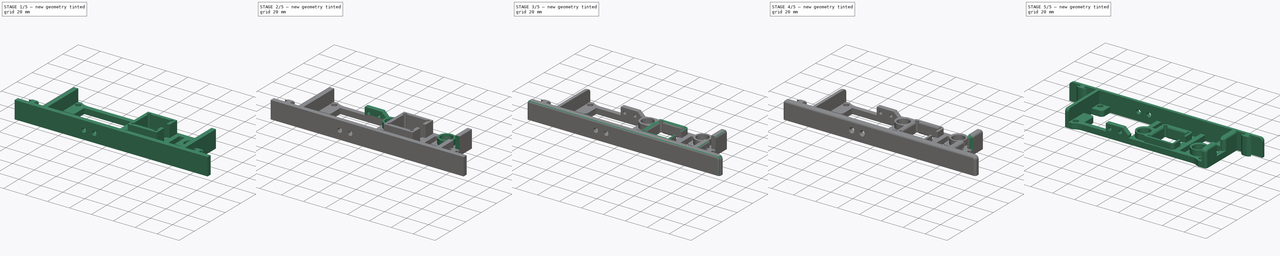
[diagram: build sequence overview — one tinted view per stage of 5, left to right]
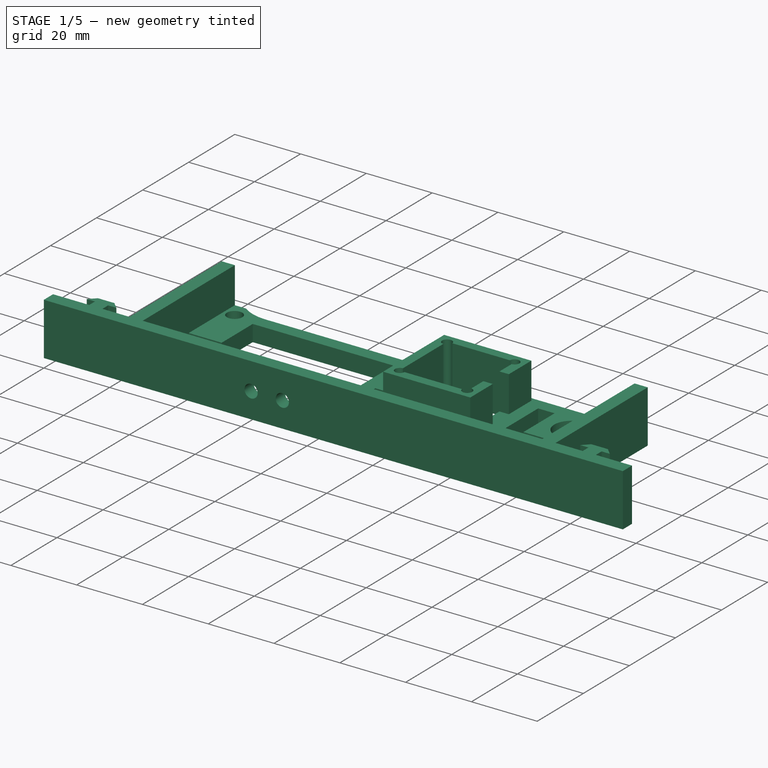
[diagram: stage 1 of 5 — iso view after this stage's code; geometry added in this stage tinted green]
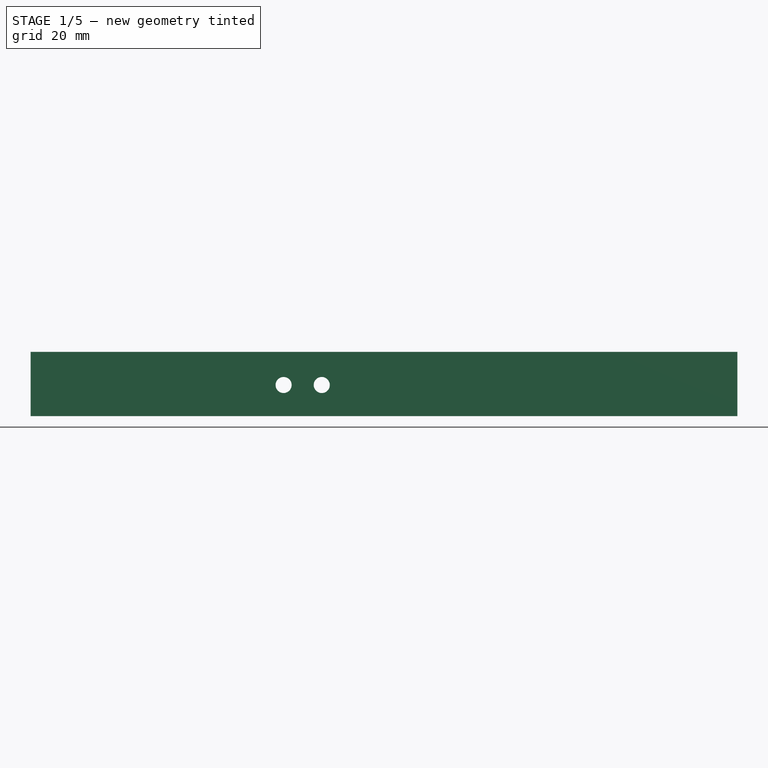
[diagram: stage 1 of 5 — front view after this stage's code; geometry added in this stage tinted green]
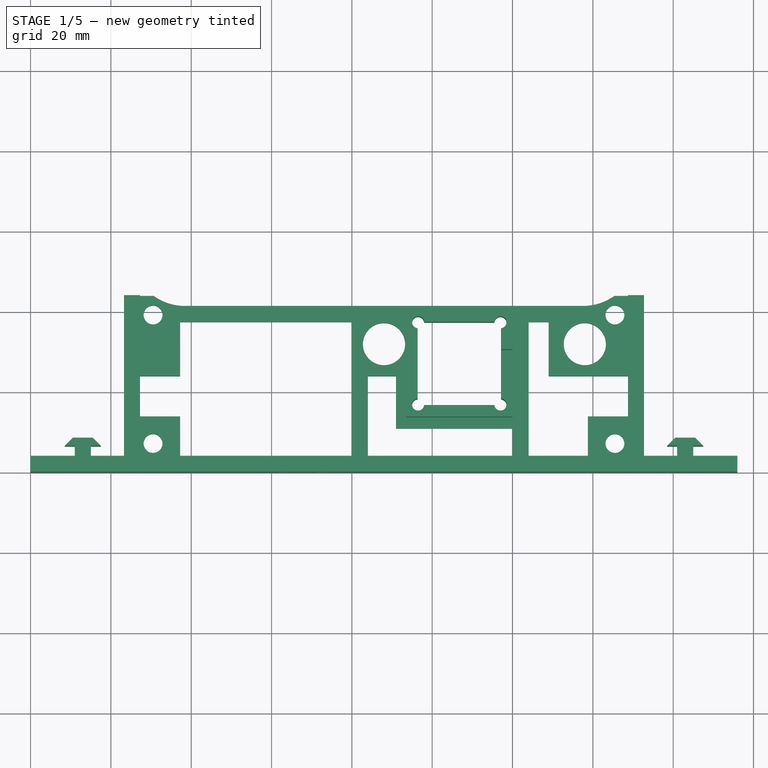
[diagram: stage 1 of 5 — top view after this stage's code; geometry added in this stage tinted green]
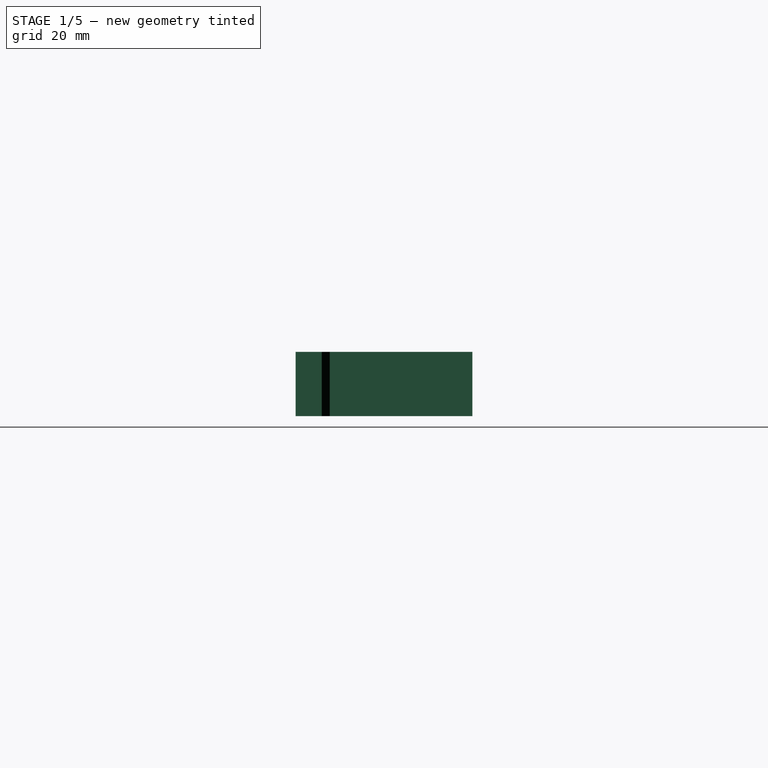
[diagram: stage 1 of 5 — right view after this stage's code; geometry added in this stage tinted green]
FCSTD DOCUMENT  (FreeCAD 0.18R4 (GitTag))
Label: Z_upper_rightv3.7
License: CreativeCommons Attribution-ShareAlike
LicenseURL: http://creativecommons.org/licenses/by-sa/4.0/
objects: Sketcher::SketchObject×11, PartDesign::Pocket×8, PartDesign::Pad×4, PartDesign::Chamfer×3, PartDesign::Fillet×2, PartDesign::Body×1, Part::Mirroring×1
note: 42 computed .brp shape members not serialized (recipe doc carries the construction recipe); baked Part::Feature solids carry a one-line shape summary decoded from their .brp

FEATURE [Sketcher::SketchObject] Sketch
  MapMode = 5
  Support = -> [XY_Plane]
  sketch-geometry (70):
    g0: LineSegment StartX=0 StartY=0 StartZ=0 EndX=0 EndY=4 EndZ=0
    g1: LineSegment StartX=0 StartY=4 StartZ=0 EndX=11 EndY=4 EndZ=0
    g2: LineSegment StartX=15 StartY=4 StartZ=0 EndX=23.25 EndY=4 EndZ=0
    g3: LineSegment StartX=23.25 StartY=4 StartZ=0 EndX=23.25 EndY=44 EndZ=0
    g4: LineSegment StartX=152.75 StartY=44 StartZ=0 EndX=152.75 EndY=4 EndZ=0
    g5: LineSegment StartX=152.75 StartY=4 StartZ=0 EndX=161 EndY=4 EndZ=0
    g6: LineSegment StartX=165 StartY=4 StartZ=0 EndX=176 EndY=4 EndZ=0
    g7: LineSegment StartX=176 StartY=4 StartZ=0 EndX=176 EndY=0 EndZ=0
    g8: LineSegment StartX=176 StartY=0 StartZ=0 EndX=0 EndY=0 EndZ=0
    g9: LineSegment StartX=23.25 StartY=44 StartZ=0 EndX=30.65 EndY=44 EndZ=0
    g10: LineSegment StartX=38.396 StartY=41.5 StartZ=0 EndX=137.604 EndY=41.5 EndZ=0
    g11: LineSegment StartX=145.35 StartY=44 StartZ=0 EndX=152.75 EndY=44 EndZ=0
    g12: ArcOfCircle CenterX=137.604 CenterY=54.75 CenterZ=0 NormalX=0 NormalY=0 NormalZ=1 AngleXU=0 Radius=13.25 StartAngle=4.71239 EndAngle=5.33678
    g13: ArcOfCircle CenterX=38.396 CenterY=54.75 CenterZ=0 NormalX=0 NormalY=0 NormalZ=1 AngleXU=0 Radius=13.25 StartAngle=4.088 EndAngle=4.71239
    g14: Circle CenterX=30.5 CenterY=39.25 CenterZ=0 NormalX=0 NormalY=0 NormalZ=1 AngleXU=0 Radius=2.35
    g15: Circle CenterX=30.5 CenterY=7.25 CenterZ=0 NormalX=0 NormalY=0 NormalZ=1 AngleXU=0 Radius=2.35
    g16: Circle CenterX=145.5 CenterY=39.25 CenterZ=0 NormalX=0 NormalY=0 NormalZ=1 AngleXU=0 Radius=2.35
    g17: Circle CenterX=145.5 CenterY=7.25 CenterZ=0 NormalX=0 NormalY=0 NormalZ=1 AngleXU=0 Radius=2.35
    g18: Circle CenterX=138 CenterY=32 CenterZ=0 NormalX=0 NormalY=0 NormalZ=1 AngleXU=0 Radius=5.25
    g19: Circle CenterX=88 CenterY=32 CenterZ=0 NormalX=0 NormalY=0 NormalZ=1 AngleXU=0 Radius=5.25
    g20: LineSegment [constr] StartX=30.5 StartY=39.25 StartZ=0 EndX=145.5 EndY=39.25 EndZ=0
    g21: LineSegment [constr] StartX=145.5 StartY=39.25 StartZ=0 EndX=145.5 EndY=7.25 EndZ=0
    g22: LineSegment [constr] StartX=145.5 StartY=7.25 StartZ=0 EndX=30.5 EndY=7.25 EndZ=0
    g23: LineSegment [constr] StartX=30.5 StartY=7.25 StartZ=0 EndX=30.5 EndY=39.25 EndZ=0
    g24: LineSegment [constr] StartX=88 StartY=32 StartZ=0 EndX=138 EndY=32 EndZ=0
    g25: LineSegment StartX=27.25 StartY=24 StartZ=0 EndX=37.25 EndY=24 EndZ=0
    g26: LineSegment StartX=37.25 StartY=24 StartZ=0 EndX=37.25 EndY=37.5 EndZ=0
    g27: LineSegment StartX=37.25 StartY=37.5 StartZ=0 EndX=80 EndY=37.5 EndZ=0
    g28: LineSegment StartX=80 StartY=37.5 StartZ=0 EndX=80 EndY=4 EndZ=0
    g29: LineSegment StartX=80 StartY=4 StartZ=0 EndX=37.25 EndY=4 EndZ=0
    g30: LineSegment StartX=37.25 StartY=4 StartZ=0 EndX=37.25 EndY=14 EndZ=0
    g31: LineSegment StartX=37.25 StartY=14 StartZ=0 EndX=27.25 EndY=14 EndZ=0
    g32: LineSegment StartX=27.25 StartY=14 StartZ=0 EndX=27.25 EndY=24 EndZ=0
    g33: LineSegment [constr] StartX=96.5 StartY=37.25 StartZ=0 EndX=117 EndY=37.25 EndZ=0
    g34: LineSegment [constr] StartX=117 StartY=37.25 StartZ=0 EndX=117 EndY=16.75 EndZ=0
    g35: LineSegment [constr] StartX=117 StartY=16.75 StartZ=0 EndX=96.5 EndY=16.75 EndZ=0
    g36: LineSegment [constr] StartX=96.5 StartY=16.75 StartZ=0 EndX=96.5 EndY=37.25 EndZ=0
    g37: LineSegment StartX=84 StartY=4 StartZ=0 EndX=84 EndY=24 EndZ=0
    g38: LineSegment StartX=84 StartY=24 StartZ=0 EndX=91 EndY=24 EndZ=0
    g39: LineSegment StartX=91 StartY=24 StartZ=0 EndX=91 EndY=11 EndZ=0
    g40: LineSegment StartX=91 StartY=11 StartZ=0 EndX=120 EndY=11 EndZ=0
    g41: LineSegment StartX=120 StartY=11 StartZ=0 EndX=120 EndY=4 EndZ=0
    g42: LineSegment StartX=120 StartY=4 StartZ=0 EndX=84 EndY=4 EndZ=0
    g43: LineSegment StartX=124 StartY=37.5 StartZ=0 EndX=129 EndY=37.5 EndZ=0
    g44: LineSegment StartX=129 StartY=37.5 StartZ=0 EndX=129 EndY=24 EndZ=0
    g45: LineSegment StartX=129 StartY=24 StartZ=0 EndX=148.75 EndY=24 EndZ=0
    g46: LineSegment StartX=148.75 StartY=24 StartZ=0 EndX=148.75 EndY=14 EndZ=0
    g47: LineSegment StartX=148.75 StartY=14 StartZ=0 EndX=138.75 EndY=14 EndZ=0
    g48: LineSegment StartX=138.75 StartY=14 StartZ=0 EndX=138.75 EndY=4 EndZ=0
    g49: LineSegment StartX=138.75 StartY=4 StartZ=0 EndX=124 EndY=4 EndZ=0
    g50: LineSegment StartX=124 StartY=4 StartZ=0 EndX=124 EndY=37.5 EndZ=0
    g51: LineSegment StartX=11 StartY=4 StartZ=0 EndX=11 EndY=6.5 EndZ=0
    g52: LineSegment StartX=11 StartY=6.5 StartZ=0 EndX=8.5 EndY=6.5 EndZ=0
    g53: LineSegment StartX=8.5 StartY=6.5 StartZ=0 EndX=10.5 EndY=8.5 EndZ=0
    g54: LineSegment StartX=10.5 StartY=8.5 StartZ=0 EndX=15.5 EndY=8.5 EndZ=0
    g55: LineSegment StartX=15.5 StartY=8.5 StartZ=0 EndX=17.5 EndY=6.5 EndZ=0
    g56: LineSegment StartX=17.5 StartY=6.5 StartZ=0 EndX=15 EndY=6.5 EndZ=0
    g57: LineSegment StartX=15 StartY=6.5 StartZ=0 EndX=15 EndY=4 EndZ=0
    g58: LineSegment StartX=161 StartY=4 StartZ=0 EndX=161 EndY=6.5 EndZ=0
    g59: LineSegment StartX=161 StartY=6.5 StartZ=0 EndX=158.5 EndY=6.5 EndZ=0
    g60: LineSegment StartX=158.5 StartY=6.5 StartZ=0 EndX=160.5 EndY=8.5 EndZ=0
    g61: LineSegment StartX=160.5 StartY=8.5 StartZ=0 EndX=165.5 EndY=8.5 EndZ=0
    g62: LineSegment StartX=165.5 StartY=8.5 StartZ=0 EndX=167.5 EndY=6.5 EndZ=0
    g63: LineSegment StartX=167.5 StartY=6.5 StartZ=0 EndX=165 EndY=6.5 EndZ=0
    g64: LineSegment StartX=165 StartY=6.5 StartZ=0 EndX=165 EndY=4 EndZ=0
    g65: LineSegment StartX=96.3881 StartY=37.375 StartZ=0 EndX=96.3881 EndY=16.625 EndZ=0
    g66: LineSegment StartX=96.3881 StartY=16.625 StartZ=0 EndX=117.138 EndY=16.625 EndZ=0
    g67: LineSegment StartX=117.138 StartY=16.625 StartZ=0 EndX=117.138 EndY=37.375 EndZ=0
    g68: LineSegment StartX=117.138 StartY=37.375 StartZ=0 EndX=96.3881 EndY=37.375 EndZ=0
    g69: Circle [constr] CenterX=106.763 CenterY=27 CenterZ=0 NormalX=0 NormalY=0 NormalZ=1 AngleXU=0 Radius=14.6725
  constraints (204):
    c: Coincident(g0,g1)
    c: Coincident(g2,g3)
    c: Coincident(g4,g5)
    c: Coincident(g6,g7)
    c: Coincident(g7,g8)
    c: Coincident(g0,g8)
    c: Coincident(g0,g-1)
    c: Horizontal(g8)
    c: Horizontal(g1)
    c: Horizontal(g2)
    c: Horizontal(g5)
    c: Horizontal(g6)
    c: Vertical(g7)
    c: Vertical(g4)
    c: Vertical(g3)
    c: Vertical(g0)
    c: DistanceY(g0,g0) = 4
    c: DistanceX(g2) = 23.25
    c: PointOnObject(g2,g1)
    c: Coincident(g4,g11)
    c: Horizontal(g11)
    c: Horizontal(g9)
    c: Horizontal(g10)
    c: DistanceY(g3,g3) = 40
    c: Coincident(g9,g13)
    c: DistanceX(g9,g9) = 7.4
    c: Coincident(g3,g9)
    c: Tangent(g10,g13) = -1.5708
    c: DistanceY(g10,g9) = 2.5
    c: Radius(g13) = 13.25
    c: Coincident(g11,g12)
    c: DistanceX(g8,g8) = 176
    c: Equal(g7,g0)
    c: Equal(g4,g3)
    c: DistanceX(g11,g11) = 7.4
    c: Tangent(g10,g12) = -1.5708
    c: Equal(g12,g13)
    c: Coincident(g20,g21)
    c: Coincident(g21,g22)
    c: Coincident(g22,g23)
    c: Coincident(g23,g20)
    c: Horizontal(g20)
    c: Horizontal(g22)
    c: Vertical(g21)
    c: Vertical(g23)
    c: Coincident(g17,g21)
    c: Coincident(g15,g22)
    c: Coincident(g14,g20)
    c: Coincident(g16,g20)
    c: DistanceX(g15) = 30.5
    c: DistanceY(g15) = 7.25
    c: DistanceY(g23,g23) = 32
    c: DistanceX(g22,g22) = 115
    c: Radius(g17) = 2.35
    c: Equal(g17,g16)
    c: Equal(g17,g15)
    c: Equal(g17,g14)
    c: Coincident(g18,g24)
    c: Coincident(g19,g24)
    c: Horizontal(g24)
    c: DistanceX(g19) = 88
    c: DistanceY(g19) = 32
    c: DistanceX(g24,g24) = 50
    c: Radius(g19) = 5.25
    c: Equal(g19,g18)
    c: Coincident(g25,g26)
    c: Coincident(g26,g27)
    c: Coincident(g27,g28)
    c: Coincident(g28,g29)
    c: Coincident(g29,g30)
    c: Coincident(g30,g31)
    c: Coincident(g31,g32)
    c: Coincident(g25,g32)
    c: Horizontal(g29)
    c: Horizontal(g31)
    c: Horizontal(g25)
    c: Horizontal(g27)
    c: Vertical(g32)
    c: Vertical(g30)
    c: Vertical(g26)
    c: Vertical(g28)
    c: DistanceX(g29) = 37.25
    c: DistanceY(g29) = 4
    c: DistanceX(g31,g31) = 10
    c: DistanceY(g30,g30) = 10
    c: DistanceY(g32,g32) = 10
    c: DistanceX(g25,g25) = 10
    c: DistanceY(g26,g26) = 13.5
    c: DistanceX(g27,g27) = 42.75
    c: Coincident(g33,g34)
    c: Coincident(g34,g35)
    c: Coincident(g35,g36)
    c: Coincident(g36,g33)
    c: Horizontal(g33)
    c: Horizontal(g35)
    c: Vertical(g34)
    c: Vertical(g36)
    c: DistanceX(g35) = 96.5
    c: DistanceY(g35) = 16.75
    c: Equal(g36,g35)
    c: DistanceX(g35,g35) = 20.5
    c: Coincident(g37,g38)
    c: Coincident(g38,g39)
    c: Coincident(g39,g40)
    c: Coincident(g40,g41)
    c: Coincident(g41,g42)
    c: Coincident(g42,g37)
    c: Horizontal(g42)
    c: PointOnObject(g37,g29)
    c: Vertical(g37)
    c: Vertical(g39)
    c: Vertical(g41)
    c: Horizontal(g38)
    c: Horizontal(g40)
    c: DistanceX(g28,g37) = 4
    c: DistanceY(g37,g37) = 20
    c: DistanceX(g38,g38) = 7
    c: DistanceY(g39,g39) = 13
    c: DistanceX(g42,g42) = 36
    c: Coincident(g43,g44)
    c: Coincident(g44,g45)
    c: Coincident(g45,g46)
    c: Coincident(g46,g47)
    c: Coincident(g47,g48)
    c: Coincident(g48,g49)
    c: Coincident(g49,g50)
    c: Coincident(g43,g50)
    c: Vertical(g50)
    c: Vertical(g44)
    c: Vertical(g46)
    c: Vertical(g48)
    c: Horizontal(g49)
    c: Horizontal(g47)
    c: Horizontal(g45)
    c: Horizontal(g43)
    c: PointOnObject(g49,g42)
    c: DistanceX(g41,g49) = 4
    c: DistanceY(g50,g50) = 33.5
    c: DistanceX(g43,g43) = 5
    c: DistanceY(g44,g44) = 13.5
    c: DistanceX(g45,g45) = 19.75
    c: DistanceY(g46,g46) = 10
    c: DistanceX(g47,g47) = 10
    c: Coincident(g51,g52)
    c: Coincident(g52,g53)
    c: Coincident(g53,g54)
    c: Coincident(g54,g55)
    c: Coincident(g55,g56)
    c: Coincident(g56,g57)
    c: Coincident(g2,g57)
    c: Coincident(g58,g59)
    c: Coincident(g59,g60)
    c: Coincident(g60,g61)
    c: Coincident(g61,g62)
    c: Coincident(g62,g63)
    c: Coincident(g63,g64)
    c: Coincident(g6,g64)
    c: Vertical(g64)
    c: Vertical(g58)
    c: Horizontal(g61)
    c: Horizontal(g59)
    c: Horizontal(g63)
    c: Vertical(g51)
    c: Vertical(g57)
    c: Horizontal(g54)
    c: Horizontal(g52)
    c: Horizontal(g56)
    c: Angle(g53) = 0.785398
    c: Angle(g55) = -0.785398
    c: DistanceY(g51,g51) = 2.5
    c: Coincident(g1,g51)
    c: Equal(g57,g51)
    c: DistanceY(g1,g53) = 4.5
    c: DistanceX(g1,g2) = 4
    c: DistanceY(g64,g64) = 2.5
    c: Equal(g58,g64)
    c: DistanceY(g6,g61) = 4.5
    c: Parallel(g60,g53)
    c: Parallel(g55,g62)
    c: Coincident(g5,g58)
    c: DistanceX(g59,g62) = 9
    c: Equal(g59,g63)
    c: PointOnObject(g5,g6)
    c: DistanceX(g4,g6) = 23.25
    c: DistanceX(g52,g55) = 9
    c: Equal(g52,g56)
    c: DistanceX(g5,g6) = 4
    c: DistanceX(g6,g6) = 11
    c: DistanceX(g1,g1) = 11
    c: Coincident(g65,g66)
    c: Coincident(g66,g67)
    c: Coincident(g67,g68)
    c: Coincident(g68,g65)
    c: Equal(g65,g66)
    c: Equal(g65,g67)
    c: Equal(g65,g68)
    c: PointOnObject(g65,g69)
    c: PointOnObject(g66,g69)
    c: PointOnObject(g67,g69)
    c: PointOnObject(g68,g69)
    c: Horizontal(g68)
    c: DistanceX(g69) = 106.763
    c: DistanceY(g69) = 27
    c: DistanceX(g68,g68) = 20.75
FEATURE [PartDesign::Pad] Pad
  Length = 16
  Length2 = 100
  Profile = -> Sketch
  Type = 0
FEATURE [Sketcher::SketchObject] Sketch001
  MapMode = 5
  Placement = pos=(0,0,16) rot=(0,0,1;0rad)
  Support = -> [Pad]
  sketch-geometry (12):
    g0: LineSegment StartX=93.5 StartY=40.25 StartZ=0 EndX=120 EndY=40.25 EndZ=0
    g1: LineSegment StartX=120 StartY=40.25 StartZ=0 EndX=120 EndY=30.5 EndZ=0
    g2: LineSegment StartX=120 StartY=13.75 StartZ=0 EndX=93.5 EndY=13.75 EndZ=0
    g3: LineSegment StartX=93.5 StartY=13.75 StartZ=0 EndX=93.5 EndY=40.25 EndZ=0
    g4: LineSegment StartX=27.25 StartY=4 StartZ=0 EndX=148.75 EndY=4 EndZ=0
    g5: LineSegment StartX=148.75 StartY=4 StartZ=0 EndX=148.75 EndY=44.25 EndZ=0
    g6: LineSegment StartX=148.75 StartY=44.25 StartZ=0 EndX=27.25 EndY=44.25 EndZ=0
    g7: LineSegment StartX=27.25 StartY=44.25 StartZ=0 EndX=27.25 EndY=4 EndZ=0
    g8: LineSegment StartX=120 StartY=30.5 StartZ=0 EndX=117 EndY=30.5 EndZ=0
    g9: LineSegment StartX=117 StartY=30.5 StartZ=0 EndX=117 EndY=23.5 EndZ=0
    g10: LineSegment StartX=117 StartY=23.5 StartZ=0 EndX=120 EndY=23.5 EndZ=0
    g11: LineSegment StartX=120 StartY=23.5 StartZ=0 EndX=120 EndY=13.75 EndZ=0
  constraints (35):
    c: Coincident(g0,g1)
    c: Coincident(g11,g2)
    c: Coincident(g2,g3)
    c: Coincident(g3,g0)
    c: Horizontal(g0)
    c: Horizontal(g2)
    c: Vertical(g1)
    c: Vertical(g3)
    c: DistanceX(g2) = 93.5
    c: DistanceY(g2) = 13.75
    c: Equal(g3,g0)
    c: DistanceX(g0,g0) = 26.5
    c: Coincident(g4,g5)
    c: Coincident(g5,g6)
    c: Coincident(g6,g7)
    c: Coincident(g7,g4)
    c: Horizontal(g4)
    c: Horizontal(g6)
    c: Vertical(g5)
    c: Vertical(g7)
    c: DistanceX(g4) = 27.25
    c: DistanceY(g4) = 4
    c: DistanceX(g4,g4) = 121.5
    c: DistanceY(g5,g5) = 40.25
    c: Coincident(g8,g9)
    c: Coincident(g9,g10)
    c: Horizontal(g8)
    c: Horizontal(g10)
    c: Vertical(g9)
    c: DistanceY(g9,g9) = 7
    c: Coincident(g1,g8)
    c: Coincident(g11,g10)
    c: Tangent(g1,g11)
    c: Equal(g1,g11)
    c: DistanceX(g10,g10) = 3
FEATURE [Sketcher::SketchObject] Sketch004
  MapMode = 5
  Placement = pos=(0,41.5,0) rot=(0,0.707107,0.707107;3.14159rad)
  sketch-geometry (7):
    g0: LineSegment StartX=-80 StartY=5 StartZ=0 EndX=-80 EndY=7 EndZ=0
    g1: LineSegment StartX=-80 StartY=7 StartZ=0 EndX=-75 EndY=12 EndZ=0
    g2: LineSegment StartX=-75 StartY=12 StartZ=0 EndX=-59.5 EndY=12 EndZ=0
    g3: LineSegment StartX=-59.5 StartY=12 StartZ=0 EndX=-59.5 EndY=5 EndZ=0
    g4: LineSegment StartX=-59.5 StartY=5 StartZ=0 EndX=-80 EndY=5 EndZ=0
    g5: Circle CenterX=-72.5 CenterY=7.75 CenterZ=0 NormalX=0 NormalY=0 NormalZ=1 AngleXU=0 Radius=1.35
    g6: Circle CenterX=-63 CenterY=7.75 CenterZ=0 NormalX=0 NormalY=0 NormalZ=1 AngleXU=0 Radius=1.35
  constraints (21):
    c: Coincident(g0,g1)
    c: Coincident(g1,g2)
    c: Coincident(g2,g3)
    c: Coincident(g3,g4)
    c: Coincident(g4,g0)
    c: Vertical(g0)
    c: Vertical(g3)
    c: Horizontal(g2)
    c: Angle(g1) = 0.785398
    c: DistanceX(g0) = -80
    c: DistanceY(g0) = 5
    c: DistanceY(g0,g0) = 2
    c: Horizontal(g4)
    c: DistanceX(g4,g4) = 20.5
    c: DistanceY(g3,g3) = 7
    c: DistanceX(g5) = -72.5
    c: DistanceY(g5) = 7.75
    c: DistanceX(g6,g5) = -9.5
    c: DistanceY(g6,g5) = 0
    c: Radius(g5) = 1.35
    c: Equal(g5,g6)
FEATURE [PartDesign::Pocket] Pocket
  BaseFeature = -> Pad
  Length = 11
  Length2 = 100
  Profile = -> Sketch001
  Type = 0
FEATURE [Sketcher::SketchObject] Sketch002
  MapMode = 5
  Placement = pos=(0,4,0) rot=(0,0.707107,0.707107;3.14159rad)
  Support = -> [Pocket]
  sketch-geometry (2):
    g0: Circle CenterX=-72.5 CenterY=7.75 CenterZ=0 NormalX=0 NormalY=0 NormalZ=1 AngleXU=0 Radius=2
    g1: Circle CenterX=-63 CenterY=7.75 CenterZ=0 NormalX=0 NormalY=0 NormalZ=1 AngleXU=0 Radius=2
  constraints (6):
    c: DistanceX(g1) = -63
    c: DistanceY(g1) = 7.75
    c: DistanceX(g0,g1) = 9.5
    c: DistanceY(g0,g1) = 0
    c: Radius(g0) = 2
    c: Equal(g0,g1)
FEATURE [PartDesign::Pocket] Pocket001
  BaseFeature = -> Pocket
  Length = 5
  Length2 = 100
  Profile = -> Sketch002
  Type = 0
FEATURE [Sketcher::SketchObject] Sketch003
  MapMode = 5
  Placement = pos=(0,0,16) rot=(0,0,1;0rad)
  Support = -> [Pocket001]
  sketch-geometry (8):
    g0: Circle CenterX=96.5 CenterY=16.75 CenterZ=0 NormalX=0 NormalY=0 NormalZ=1 AngleXU=0 Radius=1.5
    g1: Circle CenterX=96.5 CenterY=37.25 CenterZ=0 NormalX=0 NormalY=0 NormalZ=1 AngleXU=0 Radius=1.5
    g2: Circle CenterX=117 CenterY=37.25 CenterZ=0 NormalX=0 NormalY=0 NormalZ=1 AngleXU=0 Radius=1.5
    g3: Circle CenterX=117 CenterY=16.75 CenterZ=0 NormalX=0 NormalY=0 NormalZ=1 AngleXU=0 Radius=1.5
    g4: LineSegment [constr] StartX=96.5 StartY=37.25 StartZ=0 EndX=117 EndY=37.25 EndZ=0
    g5: LineSegment [constr] StartX=117 StartY=37.25 StartZ=0 EndX=117 EndY=16.75 EndZ=0
    g6: LineSegment [constr] StartX=117 StartY=16.75 StartZ=0 EndX=96.5 EndY=16.75 EndZ=0
    g7: LineSegment [constr] StartX=96.5 StartY=16.75 StartZ=0 EndX=96.5 EndY=37.25 EndZ=0
  constraints (20):
    c: Coincident(g4,g5)
    c: Coincident(g5,g6)
    c: Coincident(g6,g7)
    c: Coincident(g7,g4)
    c: Horizontal(g4)
    c: Horizontal(g6)
    c: Vertical(g5)
    c: Vertical(g7)
    c: Coincident(g3,g5)
    c: Coincident(g0,g6)
    c: Coincident(g1,g4)
    c: Coincident(g2,g4)
    c: DistanceX(g0) = 96.5
    c: DistanceY(g0) = 16.75
    c: Equal(g7,g4)
    c: DistanceY(g7,g7) = 20.5
    c: Radius(g2) = 1.5
    c: Equal(g2,g1)
    c: Equal(g2,g0)
    c: Equal(g2,g3)
FEATURE [PartDesign::Pocket] Pocket002
  BaseFeature = -> Pocket001
  Length = 5
  Length2 = 100
  Profile = -> Sketch003
  Type = 1
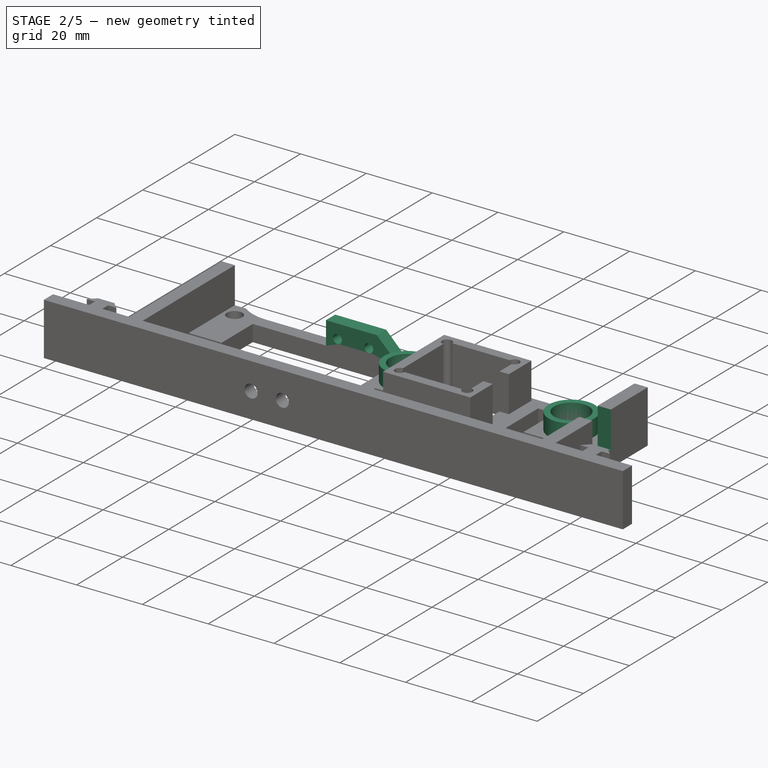
[diagram: stage 2 of 5 — iso view after this stage's code; geometry added in this stage tinted green]
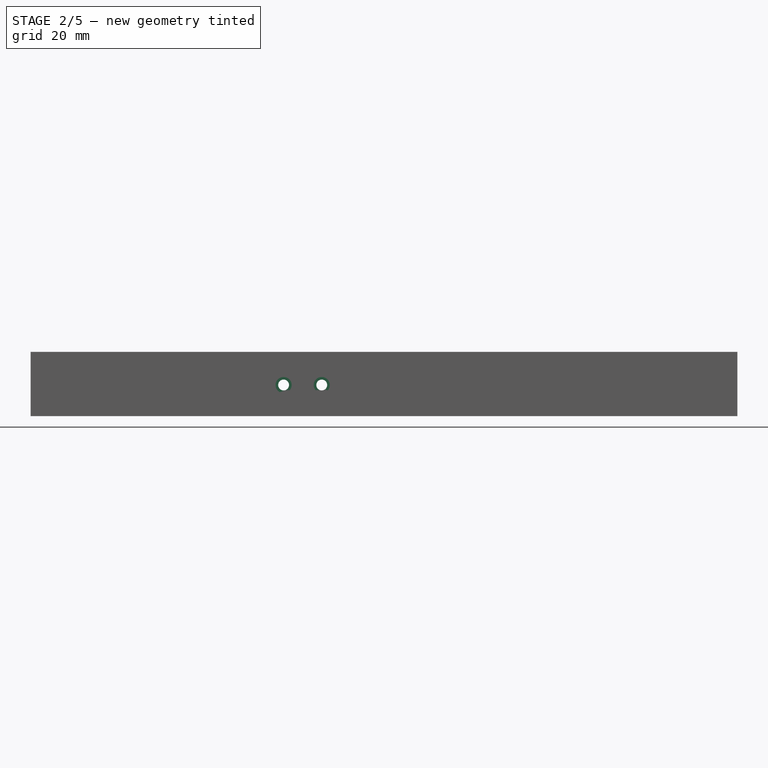
[diagram: stage 2 of 5 — front view after this stage's code; geometry added in this stage tinted green]
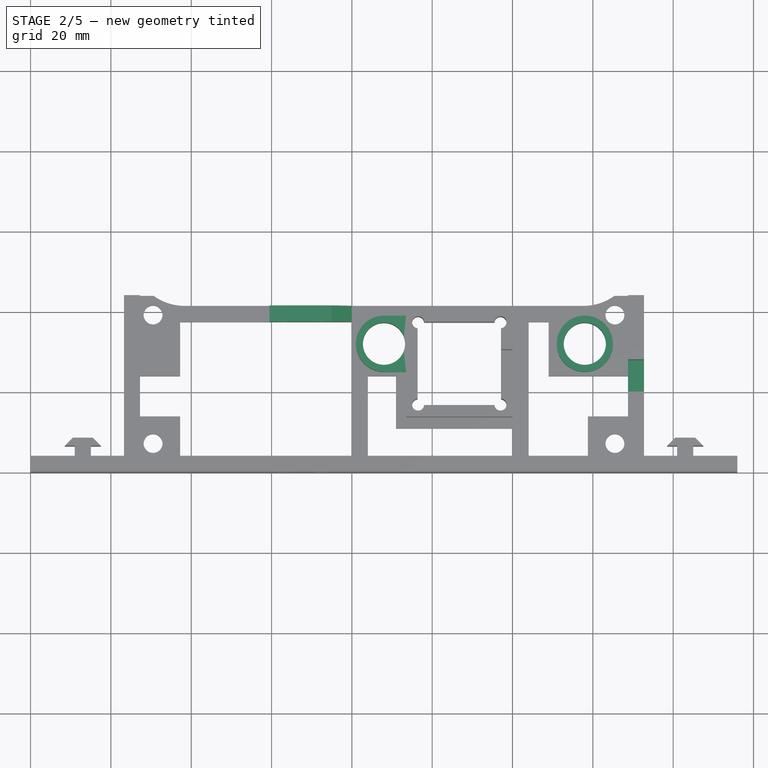
[diagram: stage 2 of 5 — top view after this stage's code; geometry added in this stage tinted green]
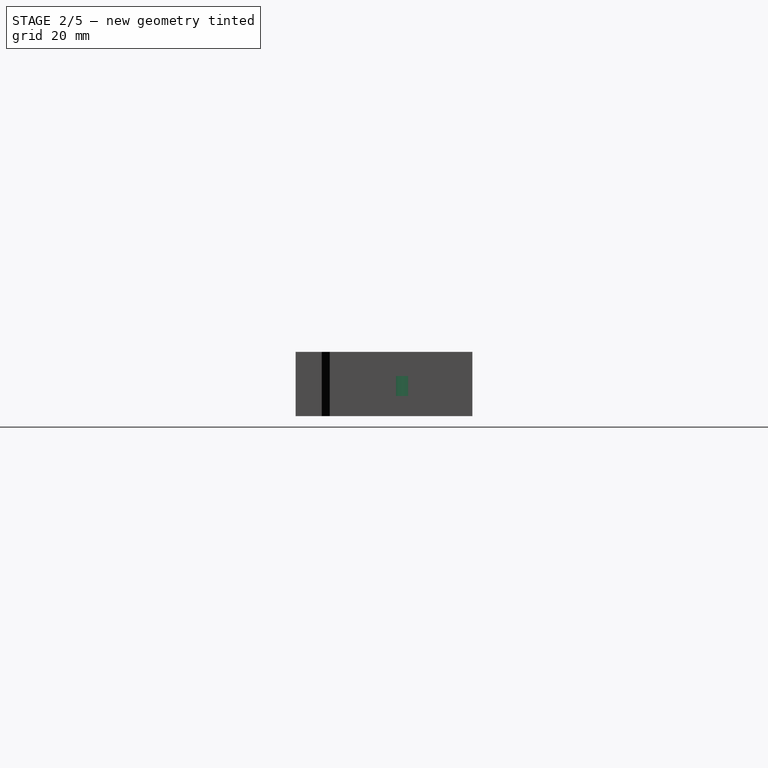
[diagram: stage 2 of 5 — right view after this stage's code; geometry added in this stage tinted green]
FEATURE [Sketcher::SketchObject] Sketch006
  MapMode = 5
  Placement = pos=(0,0,16) rot=(0,0,1;0rad)
  sketch-geometry (4):
    g0: LineSegment StartX=152.75 StartY=20 StartZ=0 EndX=152.75 EndY=28 EndZ=0
    g1: LineSegment StartX=152.75 StartY=28 StartZ=0 EndX=148.75 EndY=28 EndZ=0
    g2: LineSegment StartX=148.75 StartY=28 StartZ=0 EndX=148.75 EndY=20 EndZ=0
    g3: LineSegment StartX=148.75 StartY=20 StartZ=0 EndX=152.75 EndY=20 EndZ=0
  constraints (12):
    c: Coincident(g0,g1)
    c: Coincident(g1,g2)
    c: Horizontal(g1)
    c: Vertical(g0)
    c: Vertical(g2)
    c: DistanceY(g2,g2) = 8
    c: Coincident(g0,g3)
    c: Coincident(g2,g3)
    c: DistanceX(g1) = 148.75
    c: Horizontal(g3)
    c: DistanceY(g2) = 20
    c: DistanceX(g1,g1) = 4
FEATURE [Sketcher::SketchObject] Sketch007
  MapMode = 5
  Placement = pos=(0,0,5) rot=(0,0,1;0rad)
  sketch-geometry (8):
    g0: Circle CenterX=138 CenterY=32 CenterZ=0 NormalX=0 NormalY=0 NormalZ=1 AngleXU=0 Radius=7
    g1: Circle CenterX=138 CenterY=32 CenterZ=0 NormalX=0 NormalY=0 NormalZ=1 AngleXU=0 Radius=5.25
    g2: Circle CenterX=88 CenterY=32 CenterZ=0 NormalX=0 NormalY=0 NormalZ=1 AngleXU=0 Radius=5.25
    g3: ArcOfCircle CenterX=88 CenterY=32 CenterZ=0 NormalX=0 NormalY=0 NormalZ=1 AngleXU=0 Radius=7 StartAngle=1.5708 EndAngle=4.71239
    g4: LineSegment StartX=88 StartY=25 StartZ=0 EndX=93.5 EndY=25 EndZ=0
    g5: LineSegment StartX=88 StartY=39 StartZ=0 EndX=93.5 EndY=39 EndZ=0
    g6: LineSegment StartX=93.5 StartY=39 StartZ=0 EndX=93.5 EndY=25 EndZ=0
    g7: LineSegment [constr] StartX=88 StartY=32 StartZ=0 EndX=138 EndY=32 EndZ=0
  constraints (20):
    c: Coincident(g1,g0)
    c: Tangent(g3,g5) = 1.5708
    c: Tangent(g3,g4) = -1.5708
    c: Horizontal(g4)
    c: Coincident(g3,g2)
    c: Coincident(g6,g5)
    c: Coincident(g6,g4)
    c: Vertical(g6)
    c: Radius(g0) = 7
    c: Equal(g3,g0)
    c: Horizontal(g5)
    c: DistanceX(g4,g4) = 5.5
    c: DistanceX(g2) = 88
    c: DistanceY(g2) = 32
    c: Coincident(g7,g2)
    c: Coincident(g7,g0)
    c: Horizontal(g7)
    c: DistanceX(g7,g7) = 50
    c: Radius(g2) = 5.25
    c: Equal(g2,g1)
FEATURE [PartDesign::Pad] Pad001
  BaseFeature = -> Pocket002
  Length = 4
  Length2 = 100
  Profile = -> Sketch004
  Refine = true
  Reversed = true
  Type = 0
FEATURE [PartDesign::Pocket] Pocket003
  BaseFeature = -> Pad001
  Length = 11
  Length2 = 100
  Profile = -> Sketch006
  Refine = true
  Type = 0
FEATURE [PartDesign::Pad] Pad002
  BaseFeature = -> Pocket003
  Length = 5
  Length2 = 100
  Profile = -> Sketch007
  Refine = true
  Type = 0
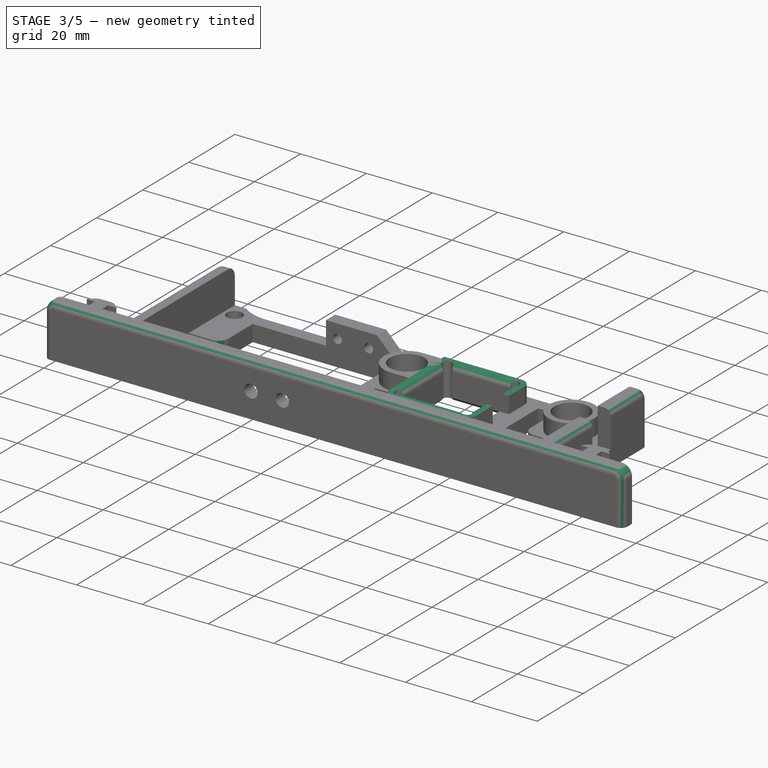
[diagram: stage 3 of 5 — iso view after this stage's code; geometry added in this stage tinted green]
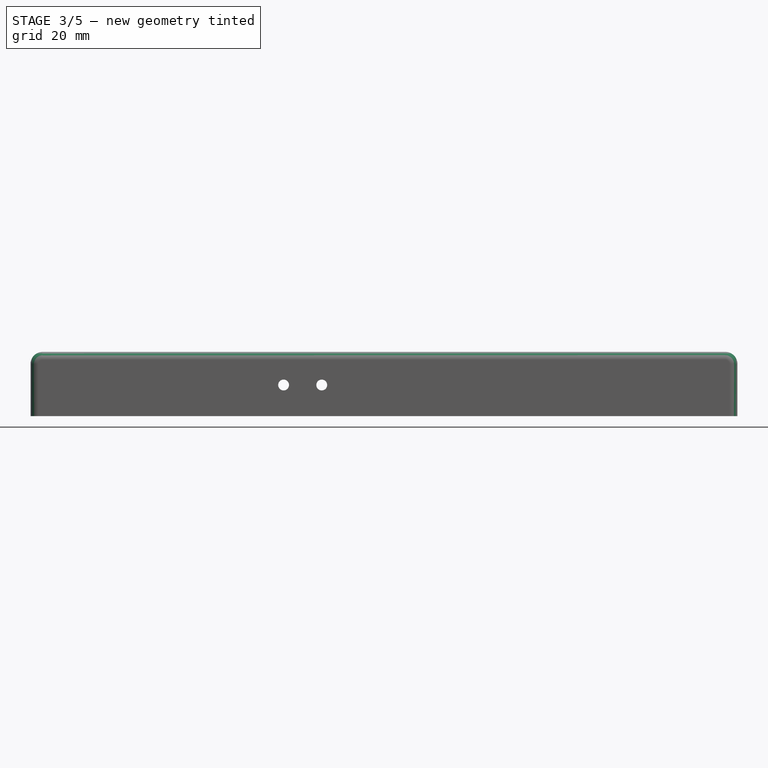
[diagram: stage 3 of 5 — front view after this stage's code; geometry added in this stage tinted green]
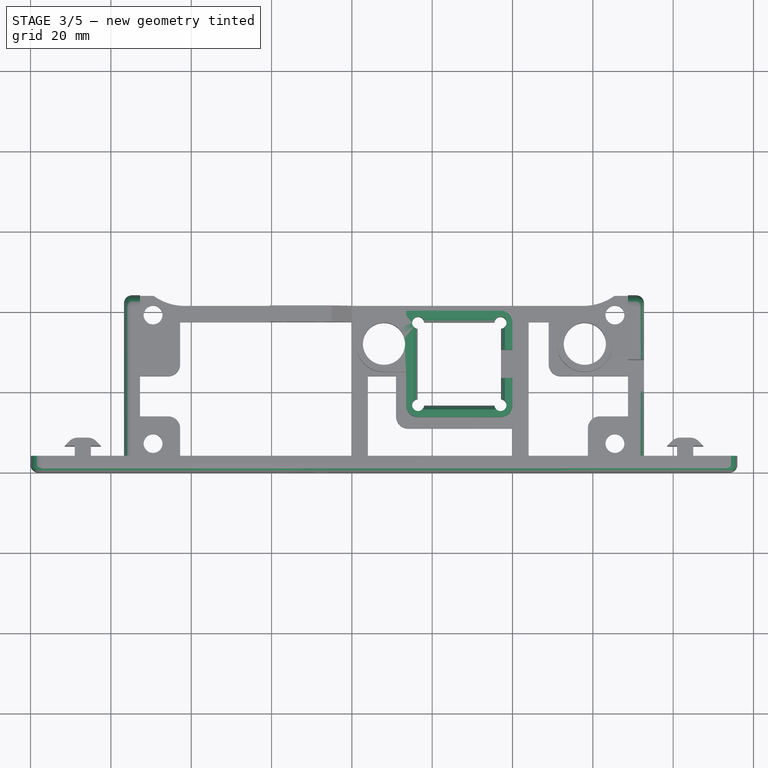
[diagram: stage 3 of 5 — top view after this stage's code; geometry added in this stage tinted green]
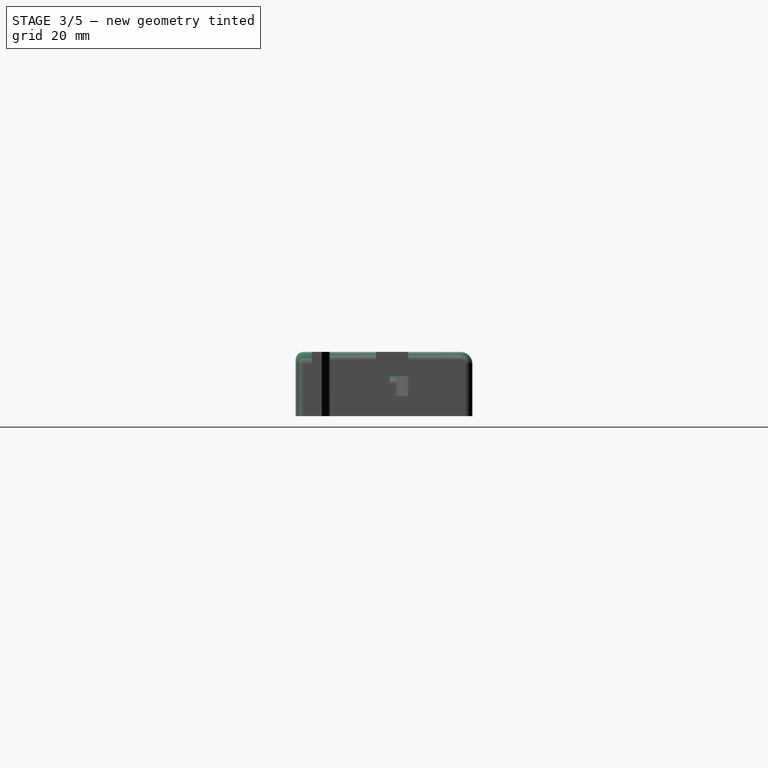
[diagram: stage 3 of 5 — right view after this stage's code; geometry added in this stage tinted green]
FEATURE [PartDesign::Pocket] Pocket004
  BaseFeature = -> Pad002
  Length = 6
  Length2 = 100
  Profile = -> Pad002 [Face79]
  Refine = true
  Type = 0
FEATURE [PartDesign::Fillet] Fillet
  Base = -> Pocket004 [Edge91,Edge134,Edge113,Edge115,Edge110,Edge112,Edge4,Edge76,Edge224,Edge203,Edge202,Edge225,Edge274,Edge271,Edge270,Edge165]
  BaseFeature = -> Pocket004
  Radius = 3
FEATURE [PartDesign::Chamfer] Chamfer
  Base = -> Fillet [Edge191,Edge195,Edge186,Edge200,Edge51,Edge48,Edge45,Edge53,Edge58,Edge54,Edge177,Edge182]
  BaseFeature = -> Fillet
  Size = 1
FEATURE [PartDesign::Fillet] Fillet001
  Base = -> Chamfer [Edge134,Edge149,Edge183,Edge189,Edge301,Edge302,Edge309,Edge305,Edge303]
  BaseFeature = -> Chamfer
  Radius = 2
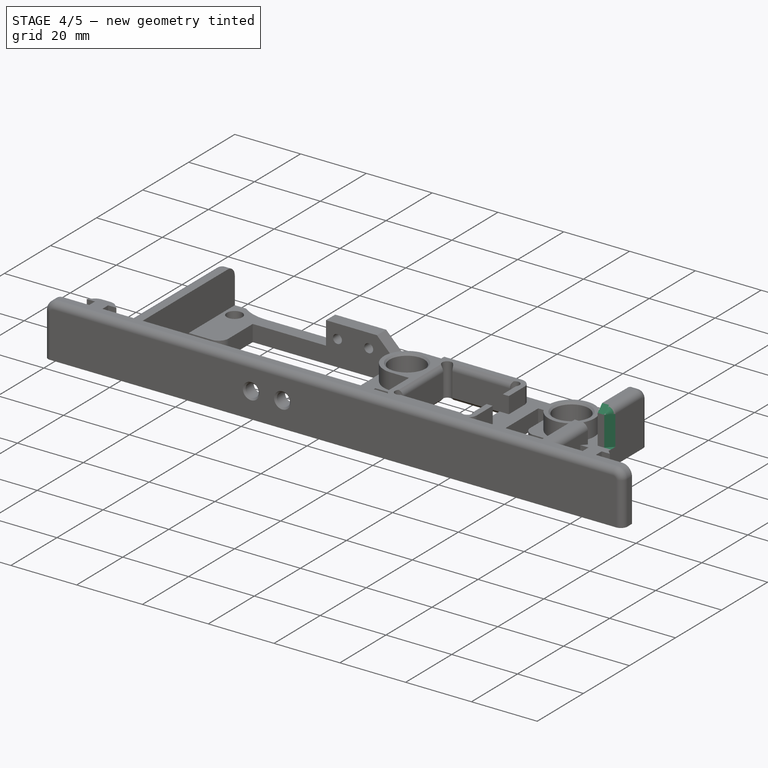
[diagram: stage 4 of 5 — iso view after this stage's code; geometry added in this stage tinted green]
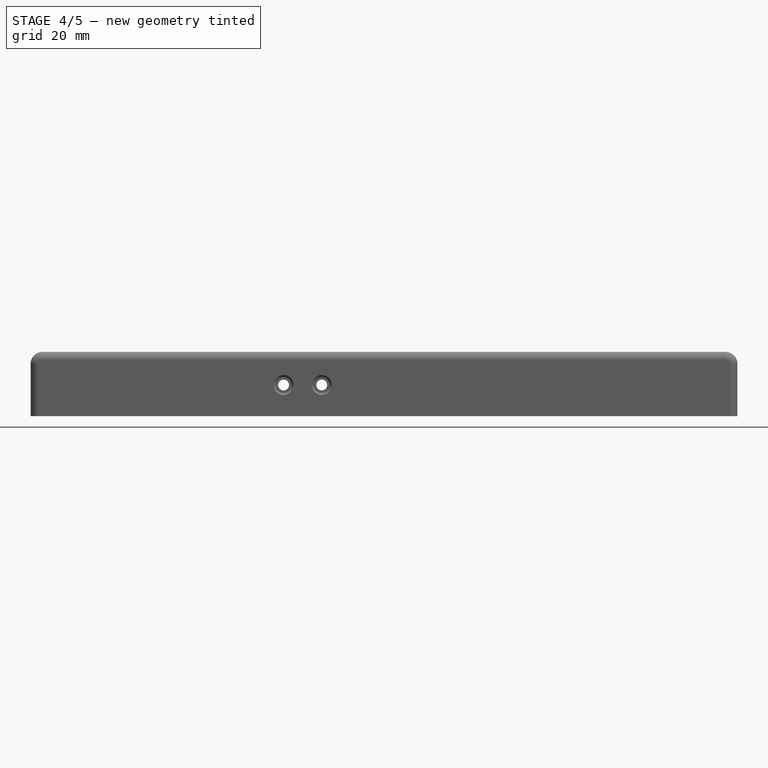
[diagram: stage 4 of 5 — front view after this stage's code; geometry added in this stage tinted green]
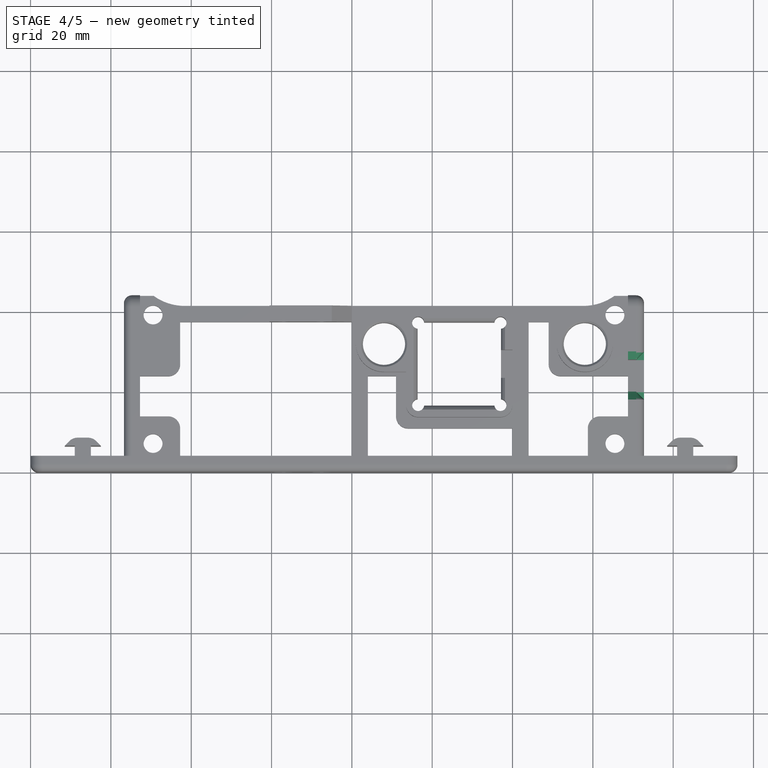
[diagram: stage 4 of 5 — top view after this stage's code; geometry added in this stage tinted green]
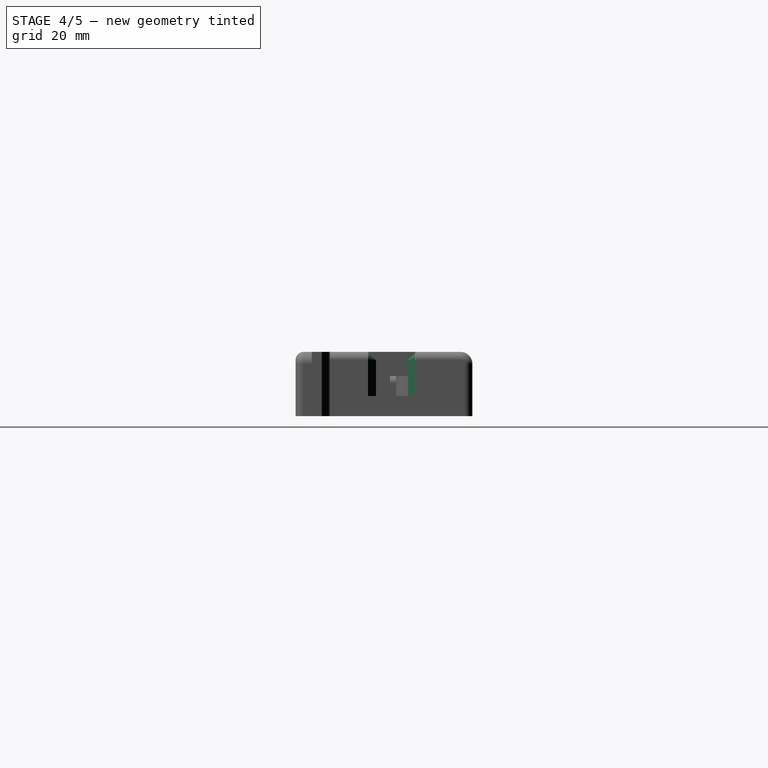
[diagram: stage 4 of 5 — right view after this stage's code; geometry added in this stage tinted green]
FEATURE [PartDesign::Chamfer] Chamfer001
  Base = -> Fillet001 [Edge92,Edge93,Edge377,Edge393]
  BaseFeature = -> Fillet001
  Size = 0.5
FEATURE [PartDesign::Chamfer] Chamfer002
  Base = -> Chamfer001 [Edge171,Edge167]
  BaseFeature = -> Chamfer001
  Size = 1.99
FEATURE [Sketcher::SketchObject] Sketch008
  ExternalGeometry = -> [Chamfer002]
  MapMode = 5
  Placement = pos=(0,41.5,0) rot=(0,0.707107,0.707107;3.14159rad)
  Support = -> [Chamfer002]
  sketch-geometry (2):
    g0: Circle CenterX=-63 CenterY=7.75 CenterZ=0 NormalX=0 NormalY=0 NormalZ=1 AngleXU=0 Radius=1.75
    g1: Circle CenterX=-72.5 CenterY=7.75 CenterZ=0 NormalX=0 NormalY=0 NormalZ=1 AngleXU=0 Radius=1.75
  constraints (4):
    c: Coincident(g0,g-4)
    c: Coincident(g1,g-3)
    c: Radius(g0) = 1.75
    c: Equal(g0,g1)
FEATURE [PartDesign::Pocket] Pocket005
  BaseFeature = -> Chamfer002
  Length = 0.75
  Length2 = 100
  Profile = -> Sketch008
  Refine = true
  Type = 0
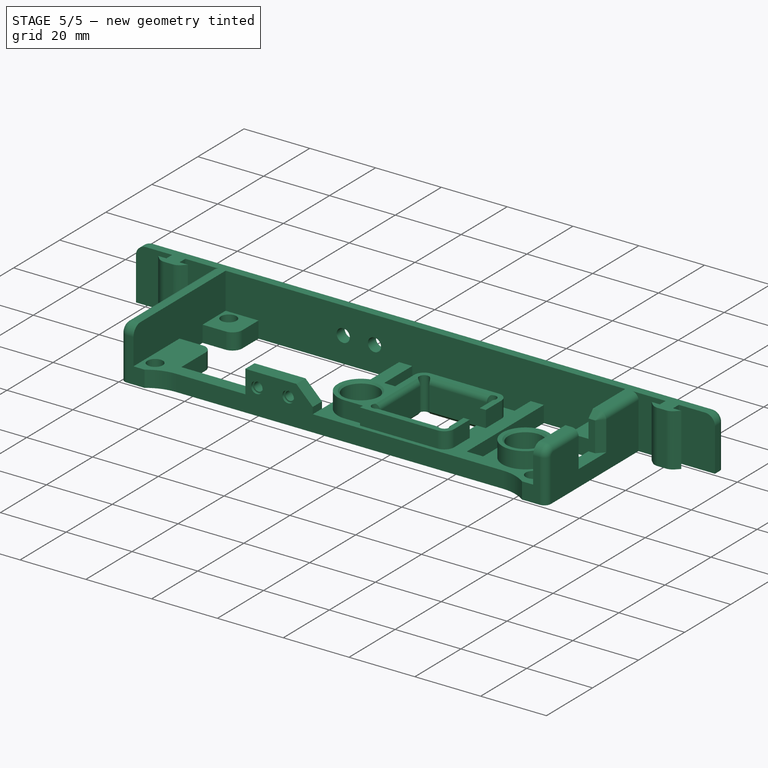
[diagram: stage 5 of 5 — iso view after this stage's code; geometry added in this stage tinted green]
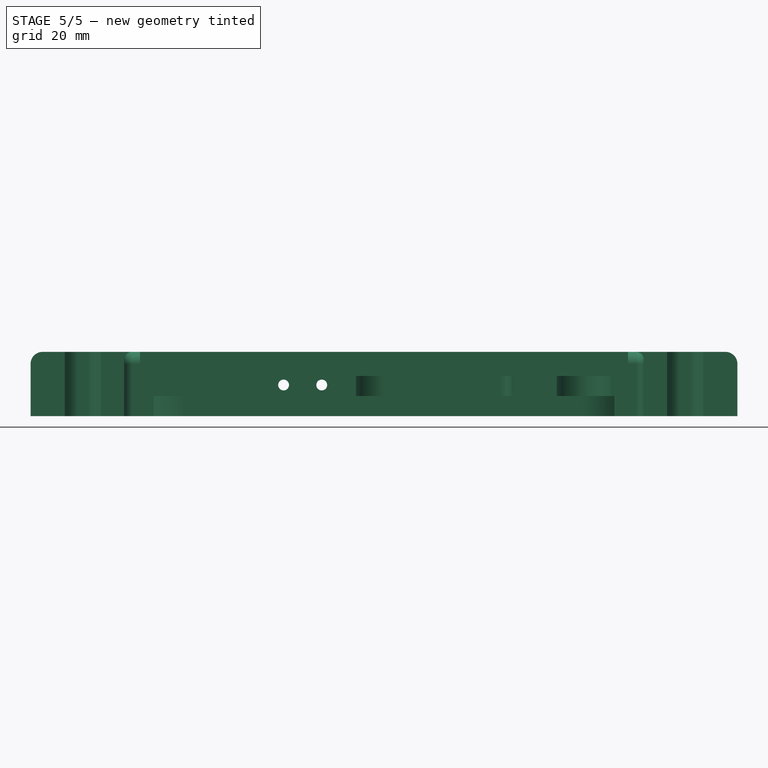
[diagram: stage 5 of 5 — front view after this stage's code; geometry added in this stage tinted green]
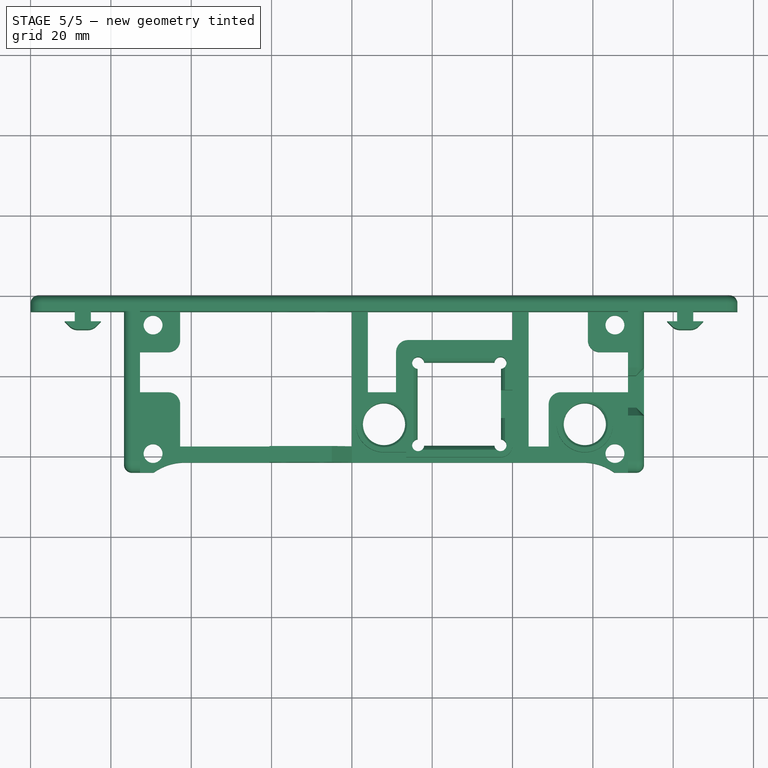
[diagram: stage 5 of 5 — top view after this stage's code; geometry added in this stage tinted green]
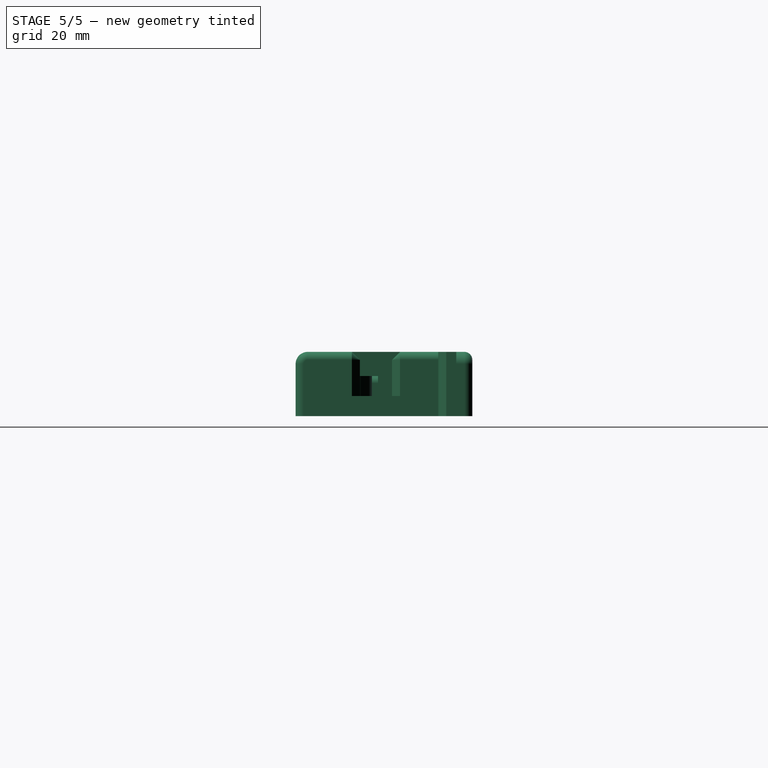
[diagram: stage 5 of 5 — right view after this stage's code; geometry added in this stage tinted green]
FEATURE [Sketcher::SketchObject] Sketch009
  ExternalGeometry = -> [Pocket005]
  MapMode = 5
  Placement = pos=(0,0,0) rot=(1,0,0;3.14159rad)
  Support = -> [Pocket005]
  sketch-geometry (4):
    g0: Circle CenterX=30.5 CenterY=-7.25 CenterZ=0 NormalX=0 NormalY=0 NormalZ=1 AngleXU=0 Radius=2.875
    g1: Circle CenterX=30.5 CenterY=-39.25 CenterZ=0 NormalX=0 NormalY=0 NormalZ=1 AngleXU=0 Radius=2.875
    g2: Circle CenterX=145.5 CenterY=-7.25 CenterZ=0 NormalX=0 NormalY=0 NormalZ=1 AngleXU=0 Radius=2.875
    g3: Circle CenterX=145.5 CenterY=-39.25 CenterZ=0 NormalX=0 NormalY=0 NormalZ=1 AngleXU=0 Radius=2.875
  constraints (8):
    c: Radius(g3) = 2.875
    c: Equal(g3,g2)
    c: Equal(g3,g1)
    c: Equal(g3,g0)
    c: Coincident(g2,g-4)
    c: Coincident(g0,g-5)
    c: Coincident(g1,g-6)
    c: Coincident(g3,g-3)
FEATURE [PartDesign::Pocket] Pocket006
  BaseFeature = -> Pocket005
  Length = 1.14
  Length2 = 100
  Profile = -> Sketch009
  Refine = true
  Type = 0
FEATURE [Sketcher::SketchObject] Sketch010
  ExternalGeometry = -> [Pocket006]
  MapMode = 5
  Placement = pos=(0,0,1.14) rot=(1,0,0;3.14159rad)
  Support = -> [Pocket006]
  sketch-geometry (8):
    g0: Circle CenterX=145.5 CenterY=-7.25 CenterZ=0 NormalX=0 NormalY=0 NormalZ=1 AngleXU=0 Radius=2.6125
    g1: Circle CenterX=145.5 CenterY=-7.25 CenterZ=0 NormalX=0 NormalY=0 NormalZ=1 AngleXU=0 Radius=2.85
    g2: Circle CenterX=145.5 CenterY=-39.25 CenterZ=0 NormalX=0 NormalY=0 NormalZ=1 AngleXU=0 Radius=2.85
    g3: Circle CenterX=145.5 CenterY=-39.25 CenterZ=0 NormalX=0 NormalY=0 NormalZ=1 AngleXU=0 Radius=2.6125
    g4: Circle CenterX=30.5 CenterY=-39.25 CenterZ=0 NormalX=0 NormalY=0 NormalZ=1 AngleXU=0 Radius=2.85
    g5: Circle CenterX=30.5 CenterY=-39.25 CenterZ=0 NormalX=0 NormalY=0 NormalZ=1 AngleXU=0 Radius=2.6125
    g6: Circle CenterX=30.5 CenterY=-7.25 CenterZ=0 NormalX=0 NormalY=0 NormalZ=1 AngleXU=0 Radius=2.85
    g7: Circle CenterX=30.5 CenterY=-7.25 CenterZ=0 NormalX=0 NormalY=0 NormalZ=1 AngleXU=0 Radius=2.6125
  constraints (16):
    c: Coincident(g1,g0)
    c: Radius(g0) = 2.6125
    c: Coincident(g3,g2)
    c: Radius(g3) = 2.6125
    c: Coincident(g5,g4)
    c: Radius(g5) = 2.6125
    c: Coincident(g7,g6)
    c: Radius(g7) = 2.6125
    c: Coincident(g0,g-10)
    c: Coincident(g2,g-9)
    c: Coincident(g4,g-8)
    c: Coincident(g6,g-7)
    c: Radius(g6) = 2.85
    c: Equal(g1,g6)
    c: Equal(g6,g4)
    c: Equal(g4,g2)
FEATURE [PartDesign::Pad] Pad003
  BaseFeature = -> Pocket006
  Length = 0.38
  Length2 = 100
  Profile = -> Sketch010
  Refine = true
  Type = 0
FEATURE [Sketcher::SketchObject] Sketch005
  MapMode = 5
  Placement = pos=(0,0,0) rot=(1,0,0;3.14159rad)
  Support = -> [Pad003]
  sketch-geometry (16):
    g0: LineSegment StartX=32.8495 StartY=-7.2 StartZ=0 EndX=143.149 EndY=-7.2 EndZ=0
    g1: LineSegment StartX=143.149 StartY=-7.2 StartZ=0 EndX=143.149 EndY=-7.3 EndZ=0
    g2: LineSegment StartX=143.149 StartY=-7.3 StartZ=0 EndX=32.8495 EndY=-7.3 EndZ=0
    g3: LineSegment StartX=32.8495 StartY=-7.3 StartZ=0 EndX=32.8495 EndY=-7.2 EndZ=0
    g4: LineSegment StartX=132.75 StartY=-31.95 StartZ=0 EndX=93.2498 EndY=-31.95 EndZ=0
    g5: LineSegment StartX=93.2498 StartY=-31.95 StartZ=0 EndX=93.2498 EndY=-32.05 EndZ=0
    g6: LineSegment StartX=93.2498 StartY=-32.05 StartZ=0 EndX=132.75 EndY=-32.05 EndZ=0
    g7: LineSegment StartX=132.75 StartY=-32.05 StartZ=0 EndX=132.75 EndY=-31.95 EndZ=0
    g8: LineSegment StartX=30.45 StartY=-36.9005 StartZ=0 EndX=30.55 EndY=-36.9005 EndZ=0
    g9: LineSegment StartX=30.55 StartY=-36.9005 StartZ=0 EndX=30.55 EndY=-9.60053 EndZ=0
    g10: LineSegment StartX=30.55 StartY=-9.60053 StartZ=0 EndX=30.45 EndY=-9.60053 EndZ=0
    g11: LineSegment StartX=30.45 StartY=-9.60053 StartZ=0 EndX=30.45 EndY=-36.9005 EndZ=0
    g12: LineSegment StartX=145.45 StartY=-36.9005 StartZ=0 EndX=145.55 EndY=-36.9005 EndZ=0
    g13: LineSegment StartX=145.55 StartY=-36.9005 StartZ=0 EndX=145.55 EndY=-9.60053 EndZ=0
    g14: LineSegment StartX=145.55 StartY=-9.60053 StartZ=0 EndX=145.45 EndY=-9.60053 EndZ=0
    g15: LineSegment StartX=145.45 StartY=-9.60053 StartZ=0 EndX=145.45 EndY=-36.9005 EndZ=0
  constraints (48):
    c: Coincident(g0,g1)
    c: Coincident(g1,g2)
    c: Coincident(g2,g3)
    c: Coincident(g3,g0)
    c: Horizontal(g0)
    c: Horizontal(g2)
    c: Vertical(g1)
    c: Vertical(g3)
    c: Coincident(g4,g5)
    c: Coincident(g5,g6)
    c: Coincident(g6,g7)
    c: Coincident(g7,g4)
    c: Horizontal(g4)
    c: Vertical(g5)
    c: Vertical(g7)
    c: Coincident(g8,g9)
    c: Coincident(g9,g10)
    c: Coincident(g10,g11)
    c: Coincident(g11,g8)
    c: Horizontal(g8)
    c: Horizontal(g10)
    c: Vertical(g9)
    c: Vertical(g11)
    c: Coincident(g12,g13)
    c: Coincident(g13,g14)
    c: Coincident(g14,g15)
    c: Coincident(g15,g12)
    c: Horizontal(g12)
    c: Horizontal(g14)
    c: Vertical(g13)
    c: Vertical(g15)
    c: Equal(g8,g3)
    c: Equal(g3,g5)
    c: Equal(g5,g7)
    c: Equal(g7,g14)
    c: DistanceX(g14,g14) = 0.1
    c: DistanceX(g5) = 93.2498
    c: DistanceY(g5) = -32.05
    c: DistanceX(g6,g6) = 39.5
    c: DistanceX(g12) = 145.55
    c: DistanceY(g12) = -36.9005
    c: DistanceY(g15,g15) = 27.3
    c: DistanceX(g2,g2) = 110.3
    c: DistanceX(g1) = 143.149
    c: DistanceY(g1) = -7.3
    c: DistanceY(g9,g9) = 27.3
    c: DistanceX(g8) = 30.55
    c: DistanceY(g8) = -36.9005
FEATURE [PartDesign::Pocket] Pocket007
  BaseFeature = -> Pad003
  Length = 0.4
  Length2 = 100
  Profile = -> Sketch005
  Refine = true
  Type = 0
FEATURE [PartDesign::Body] Body
  Group = -> [Sketch,Pad,Sketch001,Sketch002,Sketch003,Sketch004,Sketch005,Pocket,Pocket001,Pocket002,Sketch006,Sketch007,Pad001,Pocket003,Pad002,Pocket004,Fillet,Chamfer,Fillet001,Chamfer001,Chamfer002,Sketch008,Pocket005,Sketch009,Pocket006,Sketch010,Pad003,Pocket007]
  Origin = -> Origin
  Tip = -> Pocket007
FEATURE [Part::Mirroring] Part__Mirroring  label="Pocket007 (Mirror #1)"
  Base = (0,0,0)
  Normal = (0,1,0)
  Source = -> Pocket007
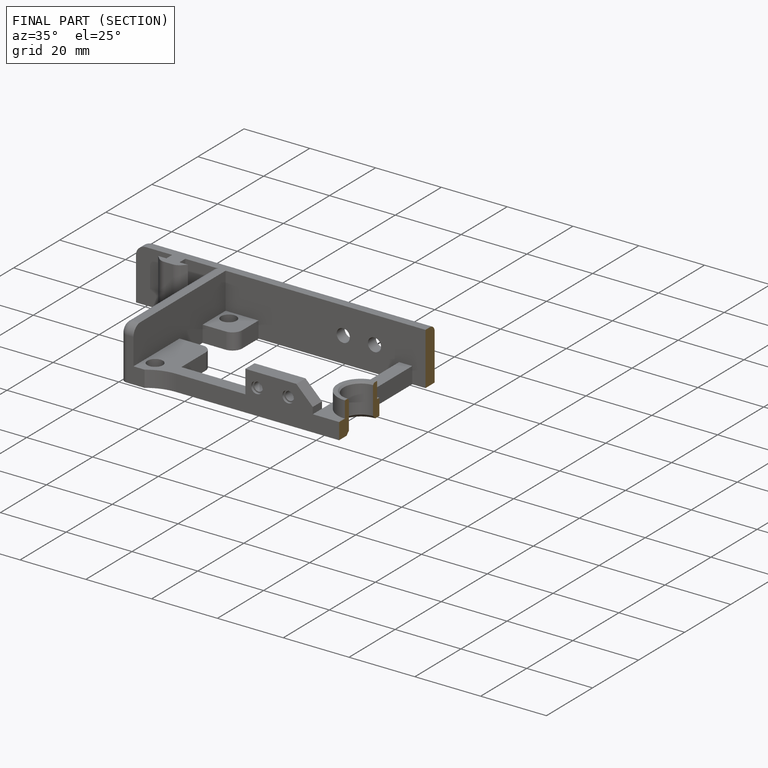
[diagram: finished part — half-section view (interior)]
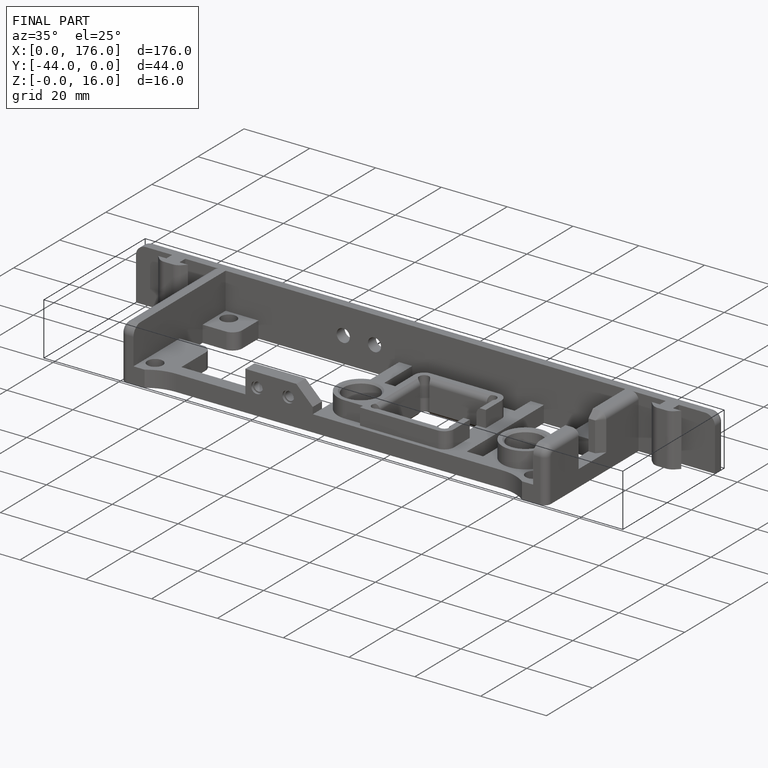
[diagram: finished part — iso view with bounding-box wireframe]
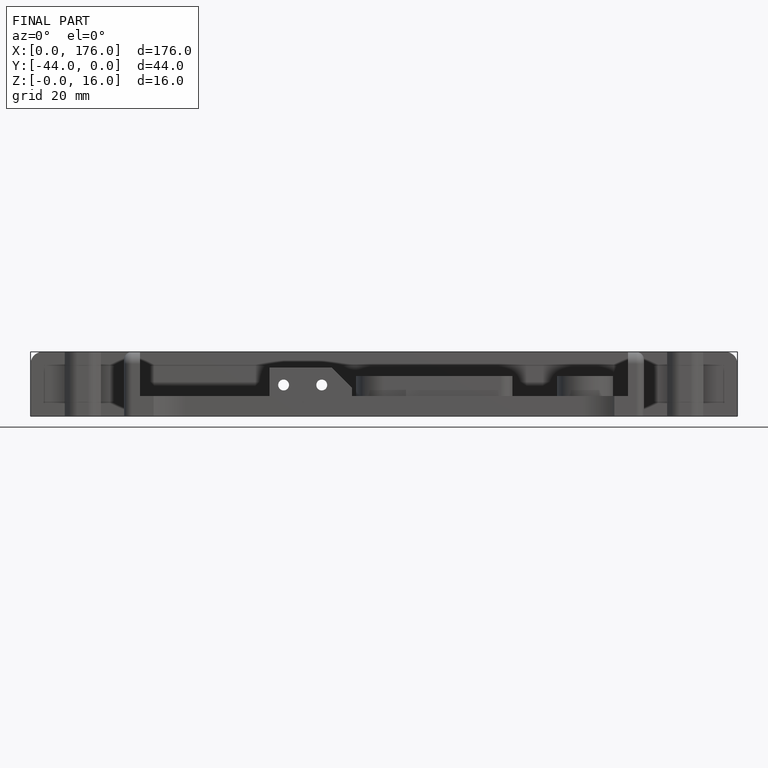
[diagram: finished part — front view with bounding-box wireframe]
